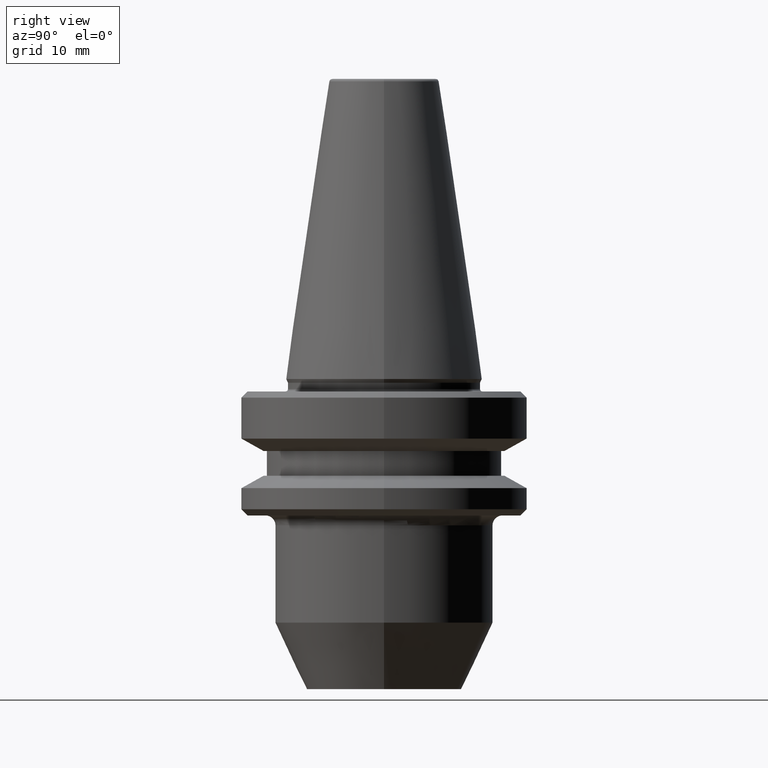
[diagram: clean part render]
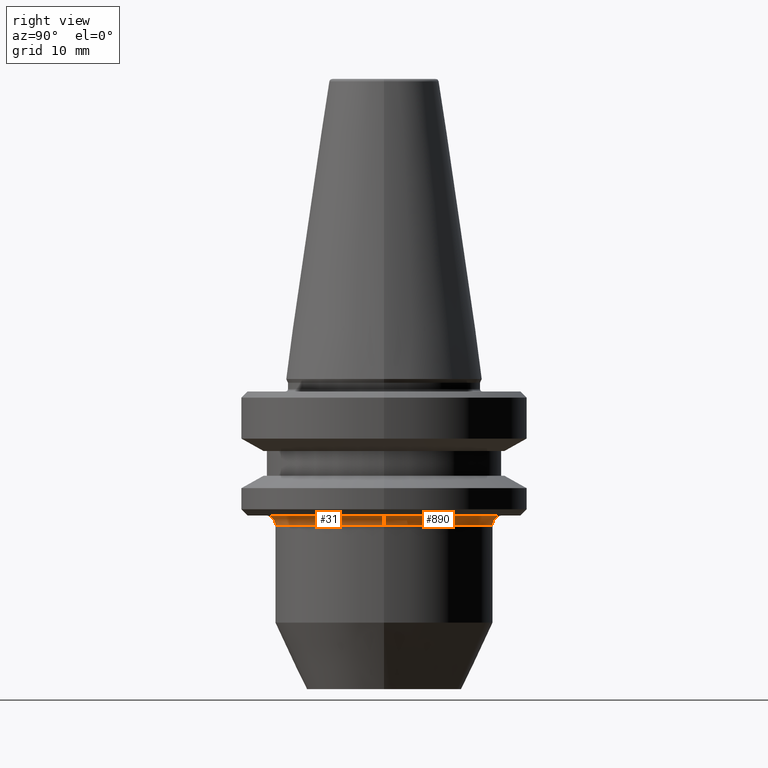
[diagram: same view with one multi-face feature highlighted, each face labeled with its STEP entity id]
A machine part, right view. The highlighted faces form ONE feature: a constant-radius fillet chain: 2 tangent blend faces with common blend radius 1.6 mm. The faces share edges in the B-rep.
Their STEP definitions:
[1] entity #890 (Torus):
#75 = AXIS2_PLACEMENT_3D ( 'NONE', #318, #453, #719 ) ;
#87 = DIRECTION ( 'NONE',  ( 1.000000000000000000, 0.0000000000000000000, 0.0000000000000000000 ) ) ;
#89 = VERTEX_POINT ( 'NONE', #633 ) ;
#139 = CARTESIAN_POINT ( 'NONE',  ( 0.0000000000000000000, 0.0000000000000000000, -21.99999999999978300 ) ) ;
#197 = CARTESIAN_POINT ( 'NONE',  ( -19.09999999999845200, 2.339075386371255000E-015, -23.59999999999984500 ) ) ;
#199 = EDGE_CURVE ( 'NONE', #712, #672, #411, .T. ) ;
#230 = CARTESIAN_POINT ( 'NONE',  ( -17.49999999999846200, 2.143131898507681700E-015, -23.59999999999983100 ) ) ;
#261 = EDGE_CURVE ( 'NONE', #89, #712, #986, .T. ) ;
#307 = CARTESIAN_POINT ( 'NONE',  ( 0.0000000000000000000, 0.0000000000000000000, -23.59999999999984500 ) ) ;
#318 = CARTESIAN_POINT ( 'NONE',  ( 19.09999999999845200, 0.0000000000000000000, -23.59999999999984500 ) ) ;
#323 = CIRCLE ( 'NONE', #667, 17.49999999999846200 ) ;
#347 = EDGE_CURVE ( 'NONE', #492, #672, #323, .T. ) ;
#354 = CIRCLE ( 'NONE', #75, 1.599999999999990300 ) ;
#383 = DIRECTION ( 'NONE',  ( 1.000000000000000000, 0.0000000000000000000, 0.0000000000000000000 ) ) ;
#389 = AXIS2_PLACEMENT_3D ( 'NONE', #139, #662, #759 ) ;
#411 = CIRCLE ( 'NONE', #879, 1.599999999999990300 ) ;
#437 = CARTESIAN_POINT ( 'NONE',  ( -19.09999999999850600, 2.339075386371261700E-015, -21.99999999999981900 ) ) ;
#453 = DIRECTION ( 'NONE',  ( 0.0000000000000000000, -1.000000000000000000, 0.0000000000000000000 ) ) ;
#462 = DIRECTION ( 'NONE',  ( -0.0000000000000000000, -0.0000000000000000000, 1.000000000000000000 ) ) ;
#463 = CARTESIAN_POINT ( 'NONE',  ( 17.49999999999846200, 0.0000000000000000000, -23.59999999999983100 ) ) ;
#492 = VERTEX_POINT ( 'NONE', #463 ) ;
#507 = ORIENTED_EDGE ( 'NONE', *, *, #199, .F. ) ;
#531 = ORIENTED_EDGE ( 'NONE', *, *, #261, .F. ) ;
#541 = EDGE_CURVE ( 'NONE', #89, #492, #354, .T. ) ;
#554 = TOROIDAL_SURFACE ( 'NONE', #572, 19.09999999999845200, 1.599999999999990300 ) ;
#572 = AXIS2_PLACEMENT_3D ( 'NONE', #307, #616, #383 ) ;
#616 = DIRECTION ( 'NONE',  ( -0.0000000000000000000, -0.0000000000000000000, 1.000000000000000000 ) ) ;
#633 = CARTESIAN_POINT ( 'NONE',  ( 19.09999999999850600, 0.0000000000000000000, -21.99999999999981900 ) ) ;
#662 = DIRECTION ( 'NONE',  ( -0.0000000000000000000, -0.0000000000000000000, 1.000000000000000000 ) ) ;
#667 = AXIS2_PLACEMENT_3D ( 'NONE', #774, #462, #87 ) ;
#672 = VERTEX_POINT ( 'NONE', #230 ) ;
#712 = VERTEX_POINT ( 'NONE', #437 ) ;
#719 = DIRECTION ( 'NONE',  ( 0.0000000000000000000, 0.0000000000000000000, -1.000000000000000000 ) ) ;
#739 = DIRECTION ( 'NONE',  ( 1.224646799147353200E-016, 1.000000000000000000, 0.0000000000000000000 ) ) ;
#754 = FACE_OUTER_BOUND ( 'NONE', #946, .T. ) ;
#759 = DIRECTION ( 'NONE',  ( 1.000000000000000000, 0.0000000000000000000, 0.0000000000000000000 ) ) ;
#774 = CARTESIAN_POINT ( 'NONE',  ( 0.0000000000000000000, 0.0000000000000000000, -23.59999999999983100 ) ) ;
#855 = ORIENTED_EDGE ( 'NONE', *, *, #541, .T. ) ;
#879 = AXIS2_PLACEMENT_3D ( 'NONE', #197, #739, #990 ) ;
#890 = ADVANCED_FACE ( 'NONE', ( #754 ), #554, .F. ) ;
#946 = EDGE_LOOP ( 'NONE', ( #507, #531, #855, #964 ) ) ;
#964 = ORIENTED_EDGE ( 'NONE', *, *, #347, .T. ) ;
#986 = CIRCLE ( 'NONE', #389, 19.09999999999856300 ) ;
#990 = DIRECTION ( 'NONE',  ( -1.000000000000000000, 1.224646799147353900E-016, 0.0000000000000000000 ) ) ;
[2] entity #31 (Torus):
#24 = AXIS2_PLACEMENT_3D ( 'NONE', #520, #212, #108 ) ;
#31 = ADVANCED_FACE ( 'NONE', ( #980 ), #168, .F. ) ;
#34 = ORIENTED_EDGE ( 'NONE', *, *, #511, .T. ) ;
#55 = AXIS2_PLACEMENT_3D ( 'NONE', #178, #756, #564 ) ;
#75 = AXIS2_PLACEMENT_3D ( 'NONE', #318, #453, #719 ) ;
#89 = VERTEX_POINT ( 'NONE', #633 ) ;
#108 = DIRECTION ( 'NONE',  ( 1.000000000000000000, 0.0000000000000000000, 0.0000000000000000000 ) ) ;
#168 = TOROIDAL_SURFACE ( 'NONE', #645, 19.09999999999845200, 1.599999999999990300 ) ;
#170 = EDGE_LOOP ( 'NONE', ( #629, #279, #34, #404 ) ) ;
#178 = CARTESIAN_POINT ( 'NONE',  ( 0.0000000000000000000, 0.0000000000000000000, -23.59999999999983100 ) ) ;
#197 = CARTESIAN_POINT ( 'NONE',  ( -19.09999999999845200, 2.339075386371255000E-015, -23.59999999999984500 ) ) ;
#199 = EDGE_CURVE ( 'NONE', #712, #672, #411, .T. ) ;
#212 = DIRECTION ( 'NONE',  ( -0.0000000000000000000, -0.0000000000000000000, 1.000000000000000000 ) ) ;
#230 = CARTESIAN_POINT ( 'NONE',  ( -17.49999999999846200, 2.143131898507681700E-015, -23.59999999999983100 ) ) ;
#279 = ORIENTED_EDGE ( 'NONE', *, *, #199, .T. ) ;
#318 = CARTESIAN_POINT ( 'NONE',  ( 19.09999999999845200, 0.0000000000000000000, -23.59999999999984500 ) ) ;
#331 = CIRCLE ( 'NONE', #55, 17.49999999999846200 ) ;
#333 = EDGE_CURVE ( 'NONE', #712, #89, #683, .T. ) ;
#354 = CIRCLE ( 'NONE', #75, 1.599999999999990300 ) ;
#404 = ORIENTED_EDGE ( 'NONE', *, *, #541, .F. ) ;
#411 = CIRCLE ( 'NONE', #879, 1.599999999999990300 ) ;
#419 = CARTESIAN_POINT ( 'NONE',  ( 0.0000000000000000000, 0.0000000000000000000, -23.59999999999984500 ) ) ;
#437 = CARTESIAN_POINT ( 'NONE',  ( -19.09999999999850600, 2.339075386371261700E-015, -21.99999999999981900 ) ) ;
#453 = DIRECTION ( 'NONE',  ( 0.0000000000000000000, -1.000000000000000000, 0.0000000000000000000 ) ) ;
#463 = CARTESIAN_POINT ( 'NONE',  ( 17.49999999999846200, 0.0000000000000000000, -23.59999999999983100 ) ) ;
#492 = VERTEX_POINT ( 'NONE', #463 ) ;
#511 = EDGE_CURVE ( 'NONE', #672, #492, #331, .T. ) ;
#520 = CARTESIAN_POINT ( 'NONE',  ( 0.0000000000000000000, 0.0000000000000000000, -21.99999999999978300 ) ) ;
#541 = EDGE_CURVE ( 'NONE', #89, #492, #354, .T. ) ;
#549 = DIRECTION ( 'NONE',  ( -0.0000000000000000000, -0.0000000000000000000, 1.000000000000000000 ) ) ;
#564 = DIRECTION ( 'NONE',  ( 1.000000000000000000, 0.0000000000000000000, 0.0000000000000000000 ) ) ;
#629 = ORIENTED_EDGE ( 'NONE', *, *, #333, .F. ) ;
#633 = CARTESIAN_POINT ( 'NONE',  ( 19.09999999999850600, 0.0000000000000000000, -21.99999999999981900 ) ) ;
#645 = AXIS2_PLACEMENT_3D ( 'NONE', #419, #549, #996 ) ;
#672 = VERTEX_POINT ( 'NONE', #230 ) ;
#683 = CIRCLE ( 'NONE', #24, 19.09999999999856300 ) ;
#712 = VERTEX_POINT ( 'NONE', #437 ) ;
#719 = DIRECTION ( 'NONE',  ( 0.0000000000000000000, 0.0000000000000000000, -1.000000000000000000 ) ) ;
#739 = DIRECTION ( 'NONE',  ( 1.224646799147353200E-016, 1.000000000000000000, 0.0000000000000000000 ) ) ;
#756 = DIRECTION ( 'NONE',  ( -0.0000000000000000000, -0.0000000000000000000, 1.000000000000000000 ) ) ;
#879 = AXIS2_PLACEMENT_3D ( 'NONE', #197, #739, #990 ) ;
#980 = FACE_OUTER_BOUND ( 'NONE', #170, .T. ) ;
#990 = DIRECTION ( 'NONE',  ( -1.000000000000000000, 1.224646799147353900E-016, 0.0000000000000000000 ) ) ;
#996 = DIRECTION ( 'NONE',  ( 1.000000000000000000, 0.0000000000000000000, 0.0000000000000000000 ) ) ;